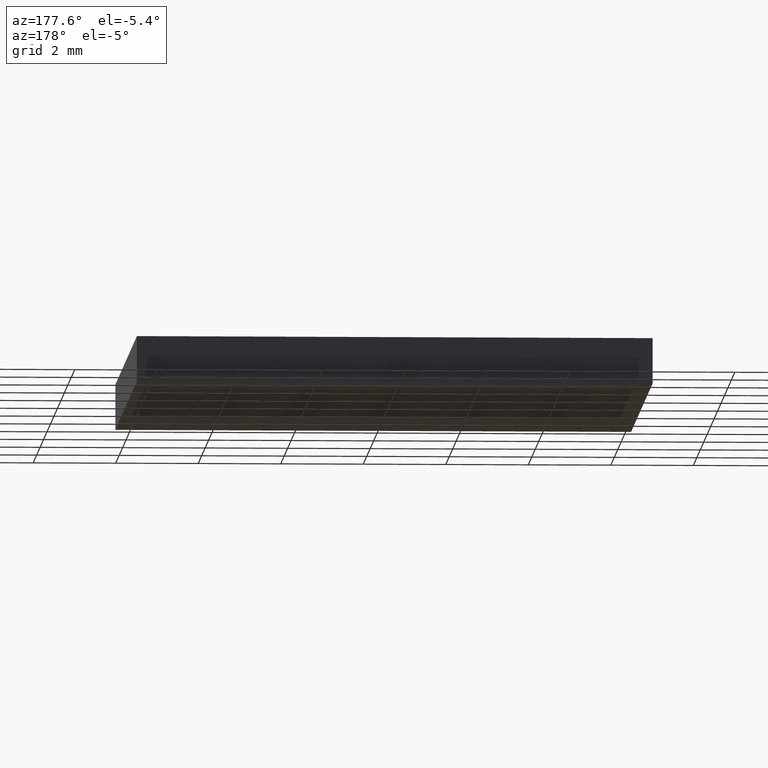
[diagram: clean part render]
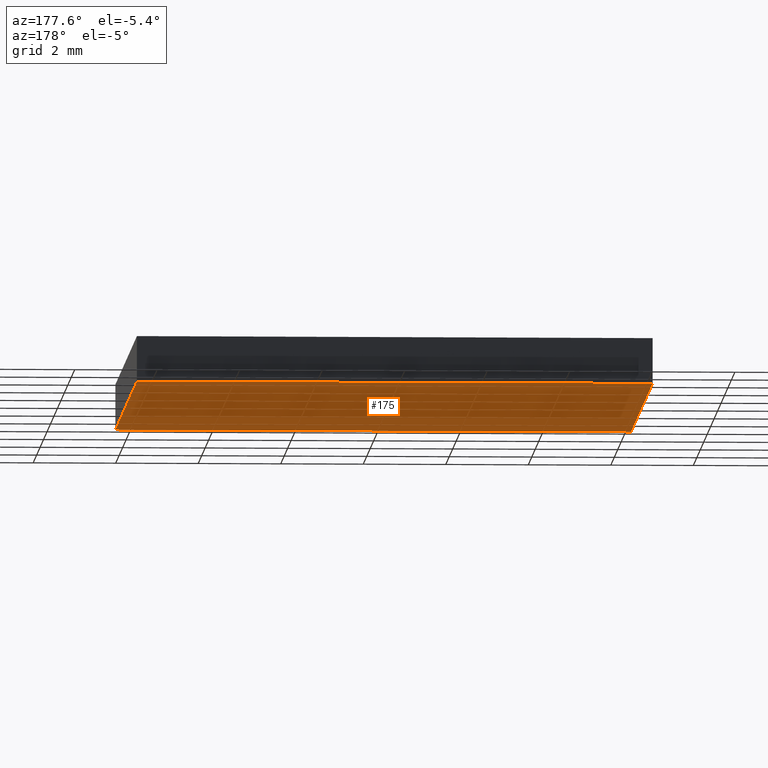
[diagram: same view with one face highlighted and labeled with its STEP entity id]
A machine part, auxiliary view. The second image highlights one B-rep face of the part: STEP entity #175.
In plain terms, the highlighted planar face has unit normal (0, 0, -1).
Its self-contained STEP definition (entity closure, byte-faithful):
#9 = EDGE_CURVE ( 'NONE', #221, #224, #269, .T. ) ;
#13 = DIRECTION ( 'NONE',  ( -1.000000000000000000, 0.0000000000000000000, -0.0000000000000000000 ) ) ;
#18 = CARTESIAN_POINT ( 'NONE',  ( 6.250000000000001800, -6.249999999999999100, 0.0000000000000000000 ) ) ;
#21 = ORIENTED_EDGE ( 'NONE', *, *, #288, .F. ) ;
#25 = LINE ( 'NONE', #102, #214 ) ;
#29 = DIRECTION ( 'NONE',  ( 0.0000000000000000000, 1.000000000000000000, 0.0000000000000000000 ) ) ;
#36 = CARTESIAN_POINT ( 'NONE',  ( -6.249999999999998200, 6.250000000000000900, 0.0000000000000000000 ) ) ;
#55 = CARTESIAN_POINT ( 'NONE',  ( -6.249999999999998200, -6.249999999999999100, 0.0000000000000000000 ) ) ;
#63 = EDGE_CURVE ( 'NONE', #224, #133, #25, .T. ) ;
#74 = VECTOR ( 'NONE', #186, 1000.000000000000000 ) ;
#75 = ORIENTED_EDGE ( 'NONE', *, *, #9, .F. ) ;
#78 = ORIENTED_EDGE ( 'NONE', *, *, #195, .F. ) ;
#97 = VECTOR ( 'NONE', #29, 1000.000000000000000 ) ;
#102 = CARTESIAN_POINT ( 'NONE',  ( -6.249999999999998200, 6.250000000000000900, 0.0000000000000000000 ) ) ;
#106 = PLANE ( 'NONE',  #275 ) ;
#120 = ORIENTED_EDGE ( 'NONE', *, *, #63, .F. ) ;
#124 = CARTESIAN_POINT ( 'NONE',  ( 6.250000000000001800, -6.249999999999999100, 0.0000000000000000000 ) ) ;
#132 = CARTESIAN_POINT ( 'NONE',  ( -6.249999999999998200, -6.249999999999999100, 0.0000000000000000000 ) ) ;
#133 = VERTEX_POINT ( 'NONE', #36 ) ;
#158 = DIRECTION ( 'NONE',  ( 1.000000000000000000, 0.0000000000000000000, 0.0000000000000000000 ) ) ;
#175 = ADVANCED_FACE ( 'NONE', ( #176 ), #106, .T. ) ;
#176 = FACE_OUTER_BOUND ( 'NONE', #258, .T. ) ;
#180 = CARTESIAN_POINT ( 'NONE',  ( 6.250000000000001800, 6.250000000000000900, 0.0000000000000000000 ) ) ;
#184 = CARTESIAN_POINT ( 'NONE',  ( -6.249999999999998200, -6.249999999999999100, 0.0000000000000000000 ) ) ;
#186 = DIRECTION ( 'NONE',  ( -0.0000000000000000000, -1.000000000000000000, -0.0000000000000000000 ) ) ;
#194 = VERTEX_POINT ( 'NONE', #132 ) ;
#195 = EDGE_CURVE ( 'NONE', #133, #194, #198, .T. ) ;
#198 = LINE ( 'NONE', #55, #74 ) ;
#205 = DIRECTION ( 'NONE',  ( -1.000000000000000000, -0.0000000000000000000, -0.0000000000000000000 ) ) ;
#214 = VECTOR ( 'NONE', #205, 1000.000000000000000 ) ;
#221 = VERTEX_POINT ( 'NONE', #18 ) ;
#224 = VERTEX_POINT ( 'NONE', #180 ) ;
#235 = LINE ( 'NONE', #184, #243 ) ;
#243 = VECTOR ( 'NONE', #158, 1000.000000000000000 ) ;
#253 = DIRECTION ( 'NONE',  ( 0.0000000000000000000, 0.0000000000000000000, -1.000000000000000000 ) ) ;
#258 = EDGE_LOOP ( 'NONE', ( #75, #21, #78, #120 ) ) ;
#269 = LINE ( 'NONE', #124, #97 ) ;
#275 = AXIS2_PLACEMENT_3D ( 'NONE', #305, #253, #13 ) ;
#288 = EDGE_CURVE ( 'NONE', #194, #221, #235, .T. ) ;
#305 = CARTESIAN_POINT ( 'NONE',  ( 0.0000000000000000000, 0.0000000000000000000, 0.0000000000000000000 ) ) ;